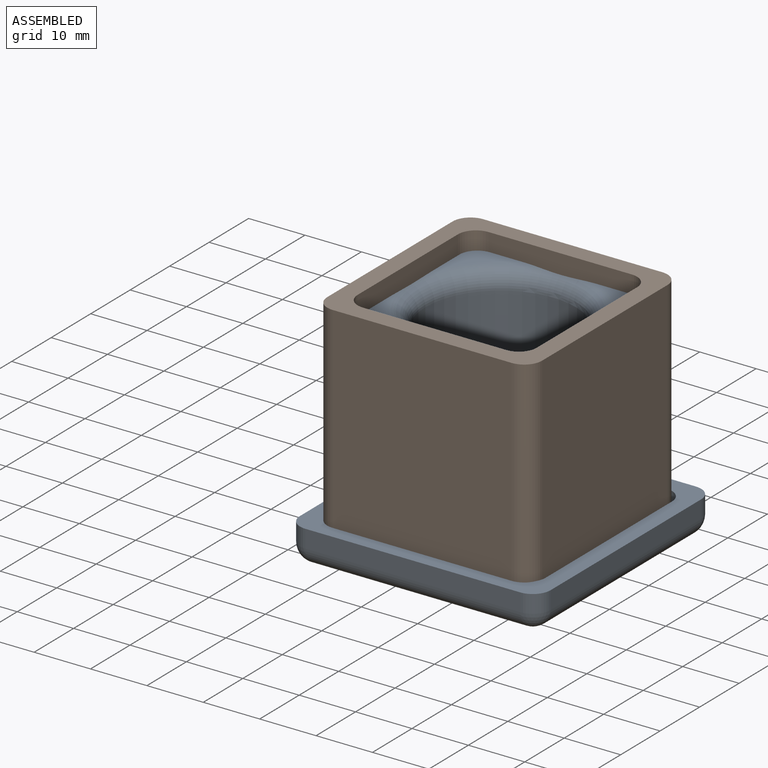
[diagram: assembled view]
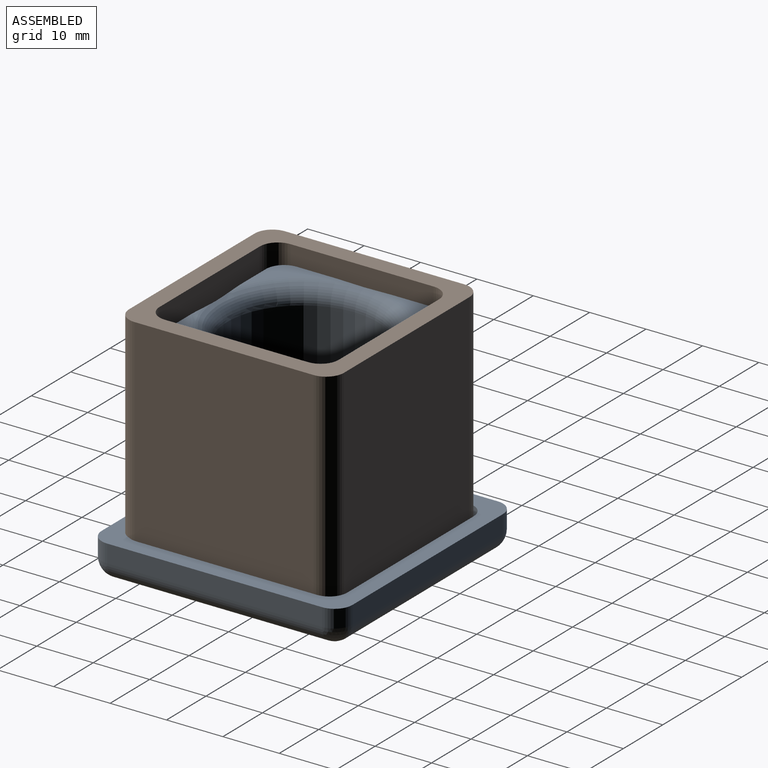
[diagram: assembled view, second angle]
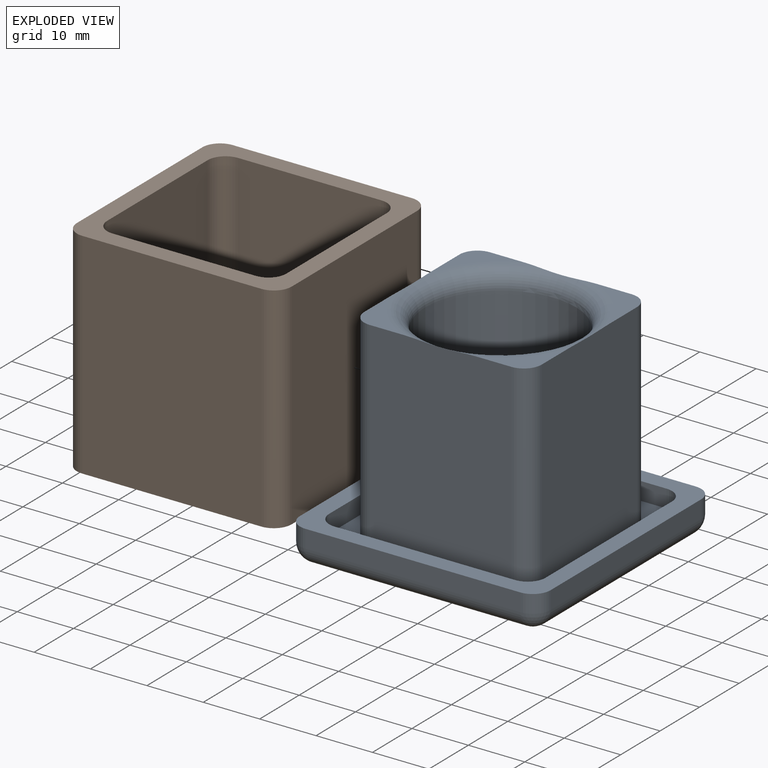
[diagram: exploded view]
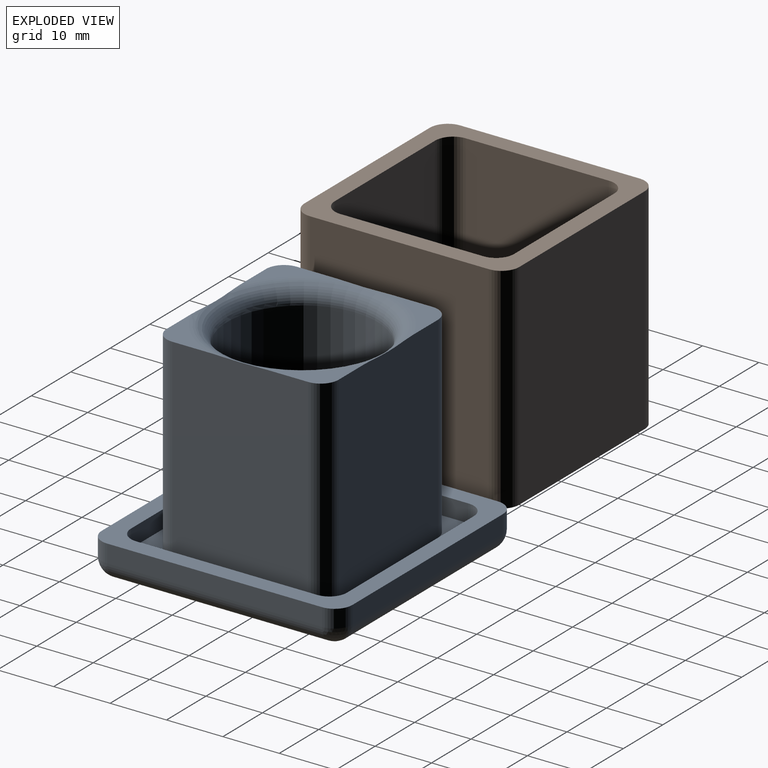
[diagram: exploded view, second angle]
ASSEMBLY  parts=2 mates=3
PART A: 42 faces, bbox 44.5x44.5x38.1 mm
  f0: plane 10.28x9.4mm, normal (0,0,1), area 31.7mm2, adj f3,f7,f39,f41
  f1: plane 10.28x9.4mm, normal (0,0,1), area 31.7mm2, adj f5,f7,f38,f41
  f2: plane 10.28x9.4mm, normal (0,0,1), area 31.7mm2, adj f4,f5,f37,f41
  f3: plane 34.93x25.15mm, normal (0,-1,0), area 876.5mm2, adj f0,f8,f10,f36,f39,f41
  f4: plane 34.93x24.13mm, normal (1,0,0), area 842.3mm2, adj f2,f8,f10,f36,f37,f41
  f5: plane 34.93x25.15mm, normal (0,1,0), area 876.5mm2, adj f1,f2,f10,f37,f38,f41
  f6: cylinder r=13.33mm len=31.75mm, axis (0,0,-1), area 2660.2mm2, adj f40,f41
  f7: plane 34.93x24.13mm, normal (-1,0,0), area 842.3mm2, adj f0,f1,f10,f38,f39,f41
  f8: plane 10.28x9.4mm, normal (0,0,1), area 31.7mm2, adj f3,f4,f36,f41
  f9: plane 38.1x38.1mm, normal (0,0,-1), area 595.3mm2, adj f27,f28,f32,f33,f40
  f10: plane 38.35x38.35mm, normal (0,0,1), area 511mm2, adj f3,f4,f5,f7,f11,f12,f13,f14
  f11: plane 32x3.18mm, normal (0,1,0), area 101.6mm2, adj f10,f19,f20,f21
  f12: plane 32x3.18mm, normal (-1,0,0), area 101.6mm2, adj f10,f19,f20,f23
  f13: plane 32x3.18mm, normal (0,-1,0), area 101.6mm2, adj f10,f19,f22,f23
  f14: plane 32x3.18mm, normal (1,0,0), area 101.6mm2, adj f10,f19,f21,f22
  f15: plane 38.1x3.18mm, normal (0,-1,0), area 121mm2, adj f19,f29,f33,f35
  f16: plane 38.1x3.18mm, normal (1,0,0), area 121mm2, adj f19,f26,f32,f35
  f17: plane 38.1x3.18mm, normal (0,1,0), area 121mm2, adj f19,f24,f26,f27
  f18: plane 38.1x3.18mm, normal (-1,0,0), area 121mm2, adj f19,f24,f28,f29
  f19: plane 44.45x44.45mm, normal (0,0,1), area 504.8mm2, adj f11,f12,f13,f14,f15,f16,f17,f18
  f20: cylinder r=3.17mm len=3.18mm, axis (0,0,-1), area 15.8mm2, adj f10,f11,f12,f19
  f21: cylinder r=3.17mm len=3.18mm, axis (0,0,1), area 15.8mm2, adj f10,f11,f14,f19
  f22: cylinder r=3.17mm len=3.18mm, axis (0,0,-1), area 15.8mm2, adj f10,f13,f14,f19
  f23: cylinder r=3.17mm len=3.18mm, axis (0,0,1), area 15.8mm2, adj f10,f12,f13,f19
  f24: cylinder r=3.17mm len=3.18mm, axis (0,0,1), area 15.8mm2, adj f17,f18,f19,f25
  f25: sphere r=3.17mm, area 15.8mm2, adj f24,f27,f28
  f26: cylinder r=3.17mm len=3.18mm, axis (0,0,-1), area 15.8mm2, adj f16,f17,f19,f30
  f27: cylinder r=3.17mm len=38.1mm, axis (-1,0,0), area 190mm2, adj f9,f17,f25,f30
  f28: cylinder r=3.17mm len=38.1mm, axis (0,-1,0), area 190mm2, adj f9,f18,f25,f31
  f29: cylinder r=3.17mm len=3.18mm, axis (0,0,-1), area 15.8mm2, adj f15,f18,f19,f31
  f30: sphere r=3.17mm, area 15.8mm2, adj f26,f27,f32
  f31: sphere r=3.17mm, area 15.8mm2, adj f28,f29,f33
  f32: cylinder r=3.17mm len=38.1mm, axis (0,1,0), area 190mm2, adj f9,f16,f30,f34
  f33: cylinder r=3.17mm len=38.1mm, axis (1,0,0), area 190mm2, adj f9,f15,f31,f34
  f34: sphere r=3.17mm, area 15.8mm2, adj f32,f33,f35
  f35: cylinder r=3.17mm len=3.18mm, axis (0,0,1), area 15.8mm2, adj f15,f16,f19,f34
  f36: cylinder r=3.17mm len=34.93mm, axis (0,0,1), area 174.2mm2, adj f3,f4,f8,f10
  f37: cylinder r=3.17mm len=34.93mm, axis (0,0,-1), area 174.2mm2, adj f2,f4,f5,f10
  f38: cylinder r=3.17mm len=34.93mm, axis (0,0,1), area 174.2mm2, adj f1,f5,f7,f10
  f39: cylinder r=3.17mm len=34.93mm, axis (0,0,-1), area 174.2mm2, adj f0,f3,f7,f10
  f40: torus R=16.51mm, axis (0,0,1), area 454mm2, adj f6,f9
  f41: torus R=16.51mm, axis (0,0,1), area 421.7mm2, adj f0,f1,f2,f3,f4,f5,f6,f7
PART B: 18 faces, bbox 38.1x38.1x38.1 mm
  f0: plane 38.1x31.75mm, normal (0,1,0), area 1209.7mm2, adj f8,f9,f14,f17
  f1: plane 38.1x31.75mm, normal (-1,0,0), area 1209.7mm2, adj f8,f9,f14,f15
  f2: plane 38.1x31.75mm, normal (0,-1,0), area 1209.7mm2, adj f8,f9,f15,f16
  f3: plane 38.1x25.4mm, normal (0,1,0), area 967.7mm2, adj f8,f9,f10,f13
  f4: plane 38.1x25.4mm, normal (1,0,0), area 967.7mm2, adj f8,f9,f10,f11
  f5: plane 38.1x25.4mm, normal (0,-1,0), area 967.7mm2, adj f8,f9,f11,f12
  f6: plane 38.1x25.4mm, normal (-1,0,0), area 967.7mm2, adj f8,f9,f12,f13
  f7: plane 38.1x31.75mm, normal (1,0,0), area 1209.7mm2, adj f8,f9,f16,f17
  f8: plane 38.1x38.1mm, normal (0,0,1), area 443.5mm2, adj f0,f1,f2,f3,f4,f5,f6,f7
  f9: plane 38.1x38.1mm, normal (0,0,-1), area 443.5mm2, adj f0,f1,f2,f3,f4,f5,f6,f7
  f10: cylinder r=3.17mm len=38.1mm, axis (0,0,1), area 190mm2, adj f3,f4,f8,f9
  f11: cylinder r=3.17mm len=38.1mm, axis (0,0,-1), area 190mm2, adj f4,f5,f8,f9
  f12: cylinder r=3.17mm len=38.1mm, axis (0,0,1), area 190mm2, adj f5,f6,f8,f9
  f13: cylinder r=3.17mm len=38.1mm, axis (0,0,-1), area 190mm2, adj f3,f6,f8,f9
  f14: cylinder r=3.17mm len=38.1mm, axis (0,0,1), area 190mm2, adj f0,f1,f8,f9
  f15: cylinder r=3.17mm len=38.1mm, axis (0,0,-1), area 190mm2, adj f1,f2,f8,f9
  f16: cylinder r=3.17mm len=38.1mm, axis (0,0,1), area 190mm2, adj f2,f7,f8,f9
  f17: cylinder r=3.17mm len=38.1mm, axis (0,0,-1), area 190mm2, adj f0,f7,f8,f9
PLACE A t=(56.21,6.43,-6.75)mm
PLACE B t=(54.15,7.29,-3.58)mm
MATE planar A.f4 <-> B.f6  axis (1,0,0) through (71.96,6.43,13.87)mm
MATE planar B.f9 <-> A.f6  axis (0,0,-1) through (56.08,5.8,-3.58)mm
MATE planar B.f5 <-> A.f5  axis (0,-1,0) through (56.08,21.67,15.47)mm
